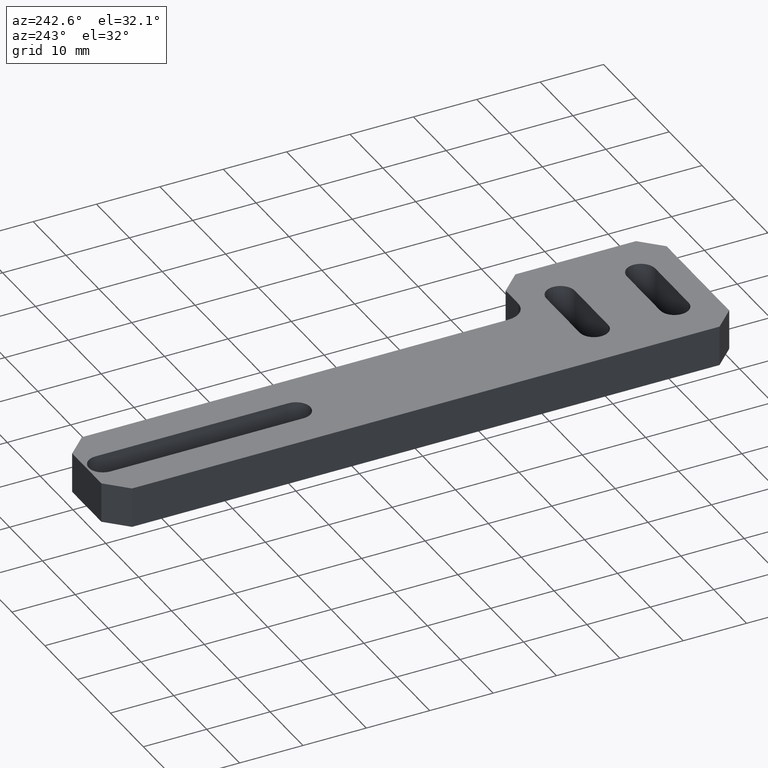
[diagram: clean part render]
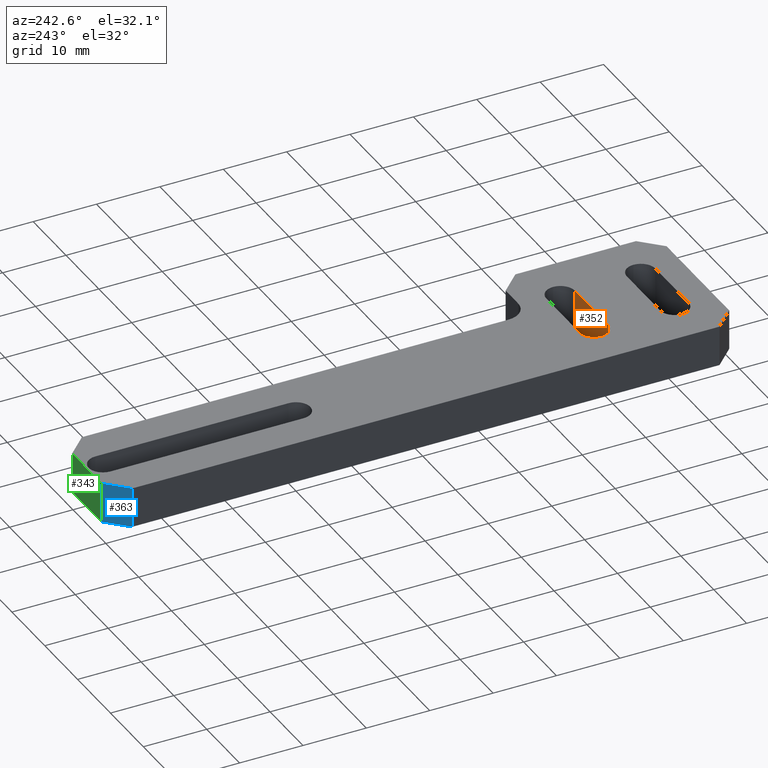
[diagram: same view with three faces highlighted in distinct colors, each labeled with its STEP entity id]
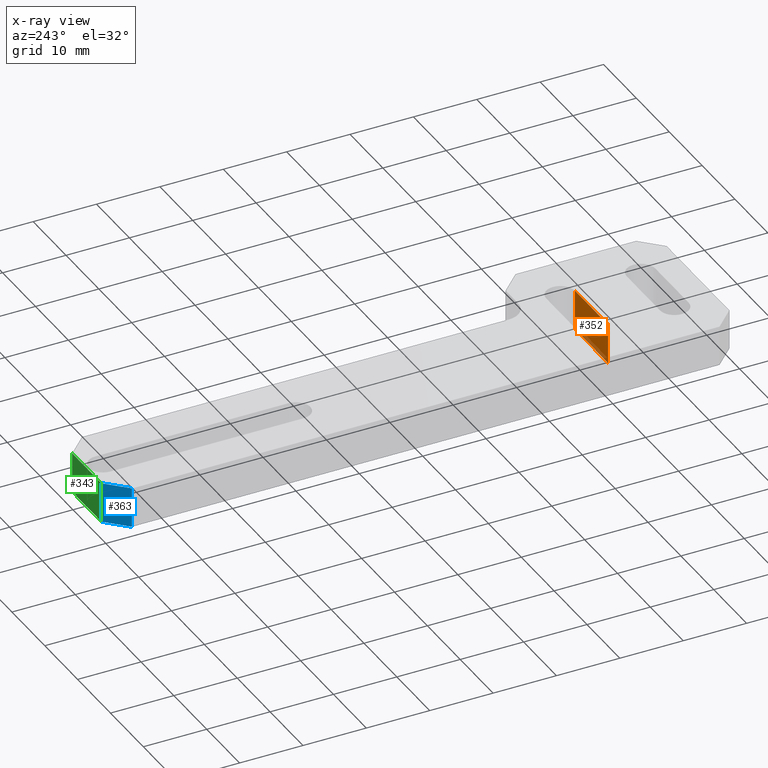
[diagram: x-ray of the same camera — body ghosted, the three highlighted faces saturated]
A machine part, auxiliary view with three faces highlighted in distinct colors.
The next image is the same camera in x-ray (body ghosted, the three faces saturated) — at least one of them is partly hidden behind the body in this view.
Their STEP definitions:

[orange] entity #352 — the highlighted planar face has unit normal (0, -1, 0).
#10 = LINE ( 'NONE', #184, #13 ) ;
#13 = VECTOR ( 'NONE', #185, 39.37007874015748100 ) ;
#14 = LINE ( 'NONE', #188, #17 ) ;
#17 = VECTOR ( 'NONE', #189, 39.37007874015748100 ) ;
#105 = LINE ( 'NONE', #288, #107 ) ;
#107 = VECTOR ( 'NONE', #289, 39.37007874015748100 ) ;
#160 = CARTESIAN_POINT ( 'NONE',  ( 0.2999999999999999900, 0.6614999999999997500, 0.0000000000000000000 ) ) ;
#162 = DIRECTION ( 'NONE',  ( 1.000000000000000000, 0.0000000000000000000, 0.0000000000000000000 ) ) ;
#184 = CARTESIAN_POINT ( 'NONE',  ( 0.2999999999999999900, 0.6614999999999997500, -0.2500000000000000000 ) ) ;
#185 = DIRECTION ( 'NONE',  ( -0.0000000000000000000, -0.0000000000000000000, 1.000000000000000000 ) ) ;
#188 = CARTESIAN_POINT ( 'NONE',  ( 0.7000000000000000700, 0.6614999999999997500, -0.2500000000000000000 ) ) ;
#189 = DIRECTION ( 'NONE',  ( -0.0000000000000000000, -0.0000000000000000000, 1.000000000000000000 ) ) ;
#288 = CARTESIAN_POINT ( 'NONE',  ( 0.2999999999999999900, 0.6614999999999997500, -0.2500000000000000000 ) ) ;
#289 = DIRECTION ( 'NONE',  ( 1.000000000000000000, 0.0000000000000000000, 0.0000000000000000000 ) ) ;
#352 = ADVANCED_FACE ( 'NONE', ( #835 ), #641, .F. ) ;
#399 = ORIENTED_EDGE ( 'NONE', *, *, #858, .T. ) ;
#400 = ORIENTED_EDGE ( 'NONE', *, *, #870, .F. ) ;
#401 = ORIENTED_EDGE ( 'NONE', *, *, #939, .F. ) ;
#402 = ORIENTED_EDGE ( 'NONE', *, *, #868, .T. ) ;
#480 = EDGE_LOOP ( 'NONE', ( #399, #400, #401, #402 ) ) ;
#636 = CARTESIAN_POINT ( 'NONE',  ( 0.2999999999999999900, 0.6614999999999997500, -0.2500000000000000000 ) ) ;
#641 = PLANE ( 'NONE',  #888 ) ;
#644 = DIRECTION ( 'NONE',  ( 0.0000000000000000000, -1.000000000000000000, 0.0000000000000000000 ) ) ;
#645 = DIRECTION ( 'NONE',  ( 0.0000000000000000000, -0.0000000000000000000, -1.000000000000000000 ) ) ;
#747 = CARTESIAN_POINT ( 'NONE',  ( 0.2999999999999999900, 0.6614999999999997500, -0.2500000000000000000 ) ) ;
#749 = CARTESIAN_POINT ( 'NONE',  ( 0.7000000000000000700, 0.6614999999999997500, 0.0000000000000000000 ) ) ;
#750 = CARTESIAN_POINT ( 'NONE',  ( 0.7000000000000000700, 0.6614999999999997500, -0.2500000000000000000 ) ) ;
#753 = CARTESIAN_POINT ( 'NONE',  ( 0.2999999999999999900, 0.6614999999999997500, 0.0000000000000000000 ) ) ;
#781 = VECTOR ( 'NONE', #162, 39.37007874015748100 ) ;
#782 = LINE ( 'NONE', #160, #781 ) ;
#790 = VERTEX_POINT ( 'NONE', #747 ) ;
#795 = VERTEX_POINT ( 'NONE', #749 ) ;
#796 = VERTEX_POINT ( 'NONE', #750 ) ;
#806 = VERTEX_POINT ( 'NONE', #753 ) ;
#835 = FACE_OUTER_BOUND ( 'NONE', #480, .T. ) ;
#858 = EDGE_CURVE ( 'NONE', #806, #795, #782, .T. ) ;
#868 = EDGE_CURVE ( 'NONE', #790, #806, #10, .T. ) ;
#870 = EDGE_CURVE ( 'NONE', #796, #795, #14, .T. ) ;
#888 = AXIS2_PLACEMENT_3D ( 'NONE', #636, #644, #645 ) ;
#939 = EDGE_CURVE ( 'NONE', #790, #796, #105, .T. ) ;

[blue] entity #363 — the highlighted planar face has unit normal (0.7071, -0.7071, 0).
#4 = LINE ( 'NONE', #178, #7 ) ;
#7 = VECTOR ( 'NONE', #179, 39.37007874015748100 ) ;
#45 = LINE ( 'NONE', #227, #48 ) ;
#48 = VECTOR ( 'NONE', #229, 39.37007874015748100 ) ;
#57 = LINE ( 'NONE', #239, #60 ) ;
#60 = VECTOR ( 'NONE', #240, 39.37007874015748100 ) ;
#114 = LINE ( 'NONE', #309, #117 ) ;
#117 = VECTOR ( 'NONE', #310, 39.37007874015748100 ) ;
#178 = CARTESIAN_POINT ( 'NONE',  ( 0.1249999999999999000, 3.899999999999999900, 0.0000000000000000000 ) ) ;
#179 = DIRECTION ( 'NONE',  ( -0.7071067811865460200, -0.7071067811865490200, -0.0000000000000000000 ) ) ;
#227 = CARTESIAN_POINT ( 'NONE',  ( -1.066855769257220400E-017, 3.774999999999999500, -0.2500000000000000000 ) ) ;
#229 = DIRECTION ( 'NONE',  ( 0.0000000000000000000, 0.0000000000000000000, -1.000000000000000000 ) ) ;
#239 = CARTESIAN_POINT ( 'NONE',  ( 0.1249999999999999000, 3.899999999999999900, -0.2500000000000000000 ) ) ;
#240 = DIRECTION ( 'NONE',  ( 0.0000000000000000000, 0.0000000000000000000, 1.000000000000000000 ) ) ;
#309 = CARTESIAN_POINT ( 'NONE',  ( -1.887499999999999500, 1.887499999999991500, -0.2500000000000000000 ) ) ;
#310 = DIRECTION ( 'NONE',  ( 0.7071067811865460200, 0.7071067811865490200, -0.0000000000000000000 ) ) ;
#363 = ADVANCED_FACE ( 'NONE', ( #828 ), #682, .F. ) ;
#443 = ORIENTED_EDGE ( 'NONE', *, *, #945, .F. ) ;
#444 = ORIENTED_EDGE ( 'NONE', *, *, #907, .F. ) ;
#445 = ORIENTED_EDGE ( 'NONE', *, *, #865, .F. ) ;
#446 = ORIENTED_EDGE ( 'NONE', *, *, #913, .F. ) ;
#482 = EDGE_LOOP ( 'NONE', ( #443, #444, #445, #446 ) ) ;
#564 = VERTEX_POINT ( 'NONE', #709 ) ;
#576 = VERTEX_POINT ( 'NONE', #718 ) ;
#577 = VERTEX_POINT ( 'NONE', #719 ) ;
#582 = VERTEX_POINT ( 'NONE', #724 ) ;
#675 = CARTESIAN_POINT ( 'NONE',  ( 0.1249999999999999000, 3.899999999999999900, -0.2500000000000000000 ) ) ;
#682 = PLANE ( 'NONE',  #952 ) ;
#684 = DIRECTION ( 'NONE',  ( 0.7071067811865490200, -0.7071067811865460200, 0.0000000000000000000 ) ) ;
#685 = DIRECTION ( 'NONE',  ( 0.7071067811865460200, 0.7071067811865490200, 0.0000000000000000000 ) ) ;
#709 = CARTESIAN_POINT ( 'NONE',  ( -1.066855769257220400E-017, 3.774999999999999500, 0.0000000000000000000 ) ) ;
#718 = CARTESIAN_POINT ( 'NONE',  ( 0.1249999999999999400, 3.899999999999999900, 0.0000000000000000000 ) ) ;
#719 = CARTESIAN_POINT ( 'NONE',  ( -1.419266785294992800E-016, 3.774999999999999000, -0.2500000000000000000 ) ) ;
#724 = CARTESIAN_POINT ( 'NONE',  ( 0.1249999999999999600, 3.899999999999999500, -0.2500000000000000000 ) ) ;
#828 = FACE_OUTER_BOUND ( 'NONE', #482, .T. ) ;
#865 = EDGE_CURVE ( 'NONE', #576, #564, #4, .T. ) ;
#907 = EDGE_CURVE ( 'NONE', #564, #577, #45, .T. ) ;
#913 = EDGE_CURVE ( 'NONE', #582, #576, #57, .T. ) ;
#945 = EDGE_CURVE ( 'NONE', #577, #582, #114, .T. ) ;
#952 = AXIS2_PLACEMENT_3D ( 'NONE', #675, #684, #685 ) ;

[green] entity #343 — the highlighted planar face has unit normal (0, 1, -0).
#47 = LINE ( 'NONE', #220, #58 ) ;
#51 = LINE ( 'NONE', #233, #54 ) ;
#53 = LINE ( 'NONE', #235, #56 ) ;
#54 = VECTOR ( 'NONE', #234, 39.37007874015748100 ) ;
#56 = VECTOR ( 'NONE', #237, 39.37007874015748100 ) ;
#57 = LINE ( 'NONE', #239, #60 ) ;
#58 = VECTOR ( 'NONE', #238, 39.37007874015748100 ) ;
#60 = VECTOR ( 'NONE', #240, 39.37007874015748100 ) ;
#220 = CARTESIAN_POINT ( 'NONE',  ( 0.5999999999999999800, 3.899999999999999900, -0.2500000000000000000 ) ) ;
#233 = CARTESIAN_POINT ( 'NONE',  ( 0.5999999999999999800, 3.899999999999999900, 0.0000000000000000000 ) ) ;
#234 = DIRECTION ( 'NONE',  ( -1.000000000000000000, 0.0000000000000000000, 0.0000000000000000000 ) ) ;
#235 = CARTESIAN_POINT ( 'NONE',  ( 0.4750000000000000300, 3.899999999999999900, -0.2500000000000000000 ) ) ;
#237 = DIRECTION ( 'NONE',  ( 0.0000000000000000000, 0.0000000000000000000, -1.000000000000000000 ) ) ;
#238 = DIRECTION ( 'NONE',  ( -1.000000000000000000, 0.0000000000000000000, 0.0000000000000000000 ) ) ;
#239 = CARTESIAN_POINT ( 'NONE',  ( 0.1249999999999999000, 3.899999999999999900, -0.2500000000000000000 ) ) ;
#240 = DIRECTION ( 'NONE',  ( 0.0000000000000000000, 0.0000000000000000000, 1.000000000000000000 ) ) ;
#343 = ADVANCED_FACE ( 'NONE', ( #375 ), #605, .T. ) ;
#375 = FACE_OUTER_BOUND ( 'NONE', #465, .T. ) ;
#465 = EDGE_LOOP ( 'NONE', ( #559, #557, #556, #555 ) ) ;
#555 = ORIENTED_EDGE ( 'NONE', *, *, #913, .T. ) ;
#556 = ORIENTED_EDGE ( 'NONE', *, *, #912, .T. ) ;
#557 = ORIENTED_EDGE ( 'NONE', *, *, #911, .T. ) ;
#559 = ORIENTED_EDGE ( 'NONE', *, *, #910, .F. ) ;
#575 = VERTEX_POINT ( 'NONE', #717 ) ;
#576 = VERTEX_POINT ( 'NONE', #718 ) ;
#581 = VERTEX_POINT ( 'NONE', #723 ) ;
#582 = VERTEX_POINT ( 'NONE', #724 ) ;
#605 = PLANE ( 'NONE',  #879 ) ;
#608 = CARTESIAN_POINT ( 'NONE',  ( 0.5999999999999999800, 3.899999999999999900, -0.2500000000000000000 ) ) ;
#610 = DIRECTION ( 'NONE',  ( 0.0000000000000000000, 1.000000000000000000, -0.0000000000000000000 ) ) ;
#611 = DIRECTION ( 'NONE',  ( 0.0000000000000000000, 0.0000000000000000000, 1.000000000000000000 ) ) ;
#717 = CARTESIAN_POINT ( 'NONE',  ( 0.4750000000000001400, 3.899999999999999900, 0.0000000000000000000 ) ) ;
#718 = CARTESIAN_POINT ( 'NONE',  ( 0.1249999999999999400, 3.899999999999999900, 0.0000000000000000000 ) ) ;
#723 = CARTESIAN_POINT ( 'NONE',  ( 0.4750000000000001400, 3.900000000000000400, -0.2500000000000000000 ) ) ;
#724 = CARTESIAN_POINT ( 'NONE',  ( 0.1249999999999999600, 3.899999999999999500, -0.2500000000000000000 ) ) ;
#879 = AXIS2_PLACEMENT_3D ( 'NONE', #608, #610, #611 ) ;
#910 = EDGE_CURVE ( 'NONE', #575, #576, #51, .T. ) ;
#911 = EDGE_CURVE ( 'NONE', #575, #581, #53, .T. ) ;
#912 = EDGE_CURVE ( 'NONE', #581, #582, #47, .T. ) ;
#913 = EDGE_CURVE ( 'NONE', #582, #576, #57, .T. ) ;